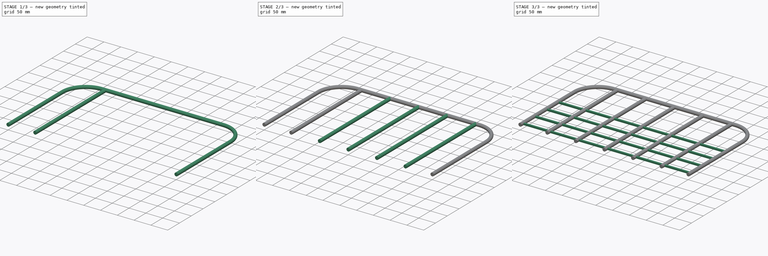
[diagram: build sequence overview — one tinted view per stage of 3, left to right]
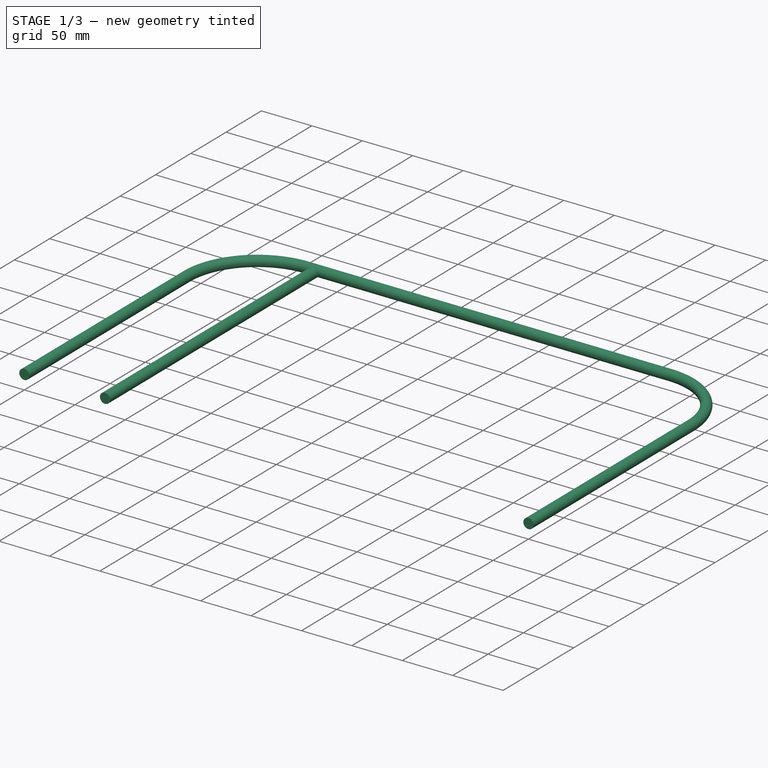
[diagram: stage 1 of 3 — iso view after this stage's code; geometry added in this stage tinted green]
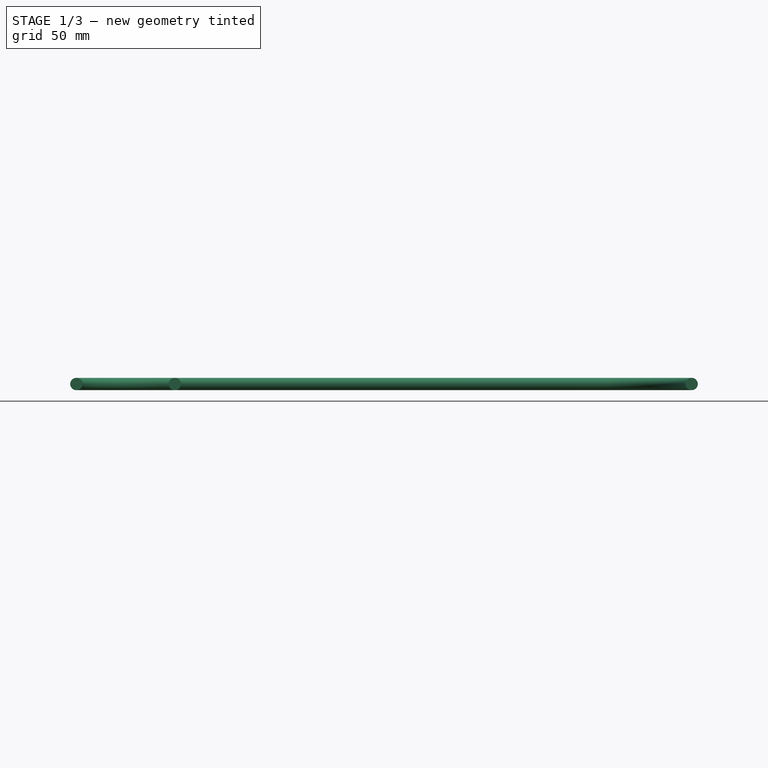
[diagram: stage 1 of 3 — front view after this stage's code; geometry added in this stage tinted green]
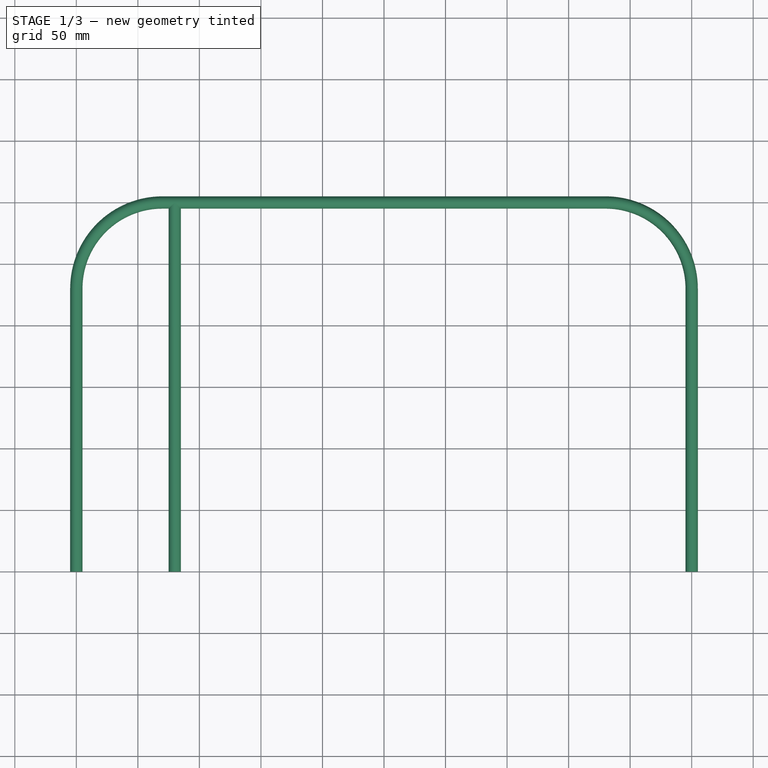
[diagram: stage 1 of 3 — top view after this stage's code; geometry added in this stage tinted green]
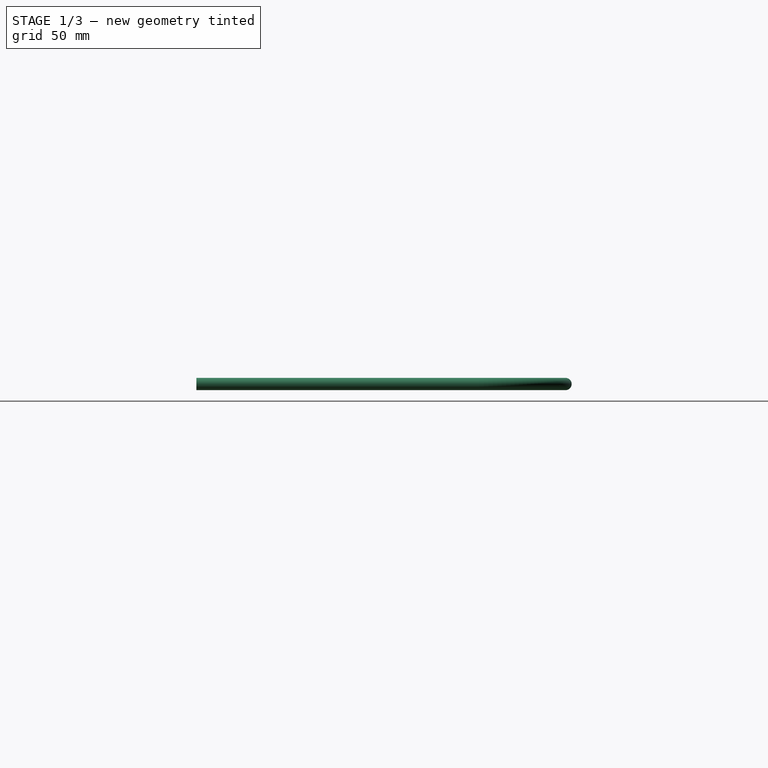
[diagram: stage 1 of 3 — right view after this stage's code; geometry added in this stage tinted green]
FCSTD DOCUMENT  (FreeCAD 0.21RUnknown)
Label: part31
License: All rights reserved
LicenseURL: http://en.wikipedia.org/wiki/All_rights_reserved
objects: Sketcher::SketchObject×5, Part::Part2DObjectPython×3, PartDesign::AdditivePipe×3, PartDesign::LinearPattern×2, Spreadsheet::Sheet×1, App::DocumentObjectGroup×1, PartDesign::Body×1
note: 17 computed .brp shape members not serialized (recipe doc carries the construction recipe); baked Part::Feature solids carry a one-line shape summary decoded from their .brp

FEATURE [Sketcher::SketchObject] Sketch  label="Path"
  FullyConstrained = true
  MapMode = 5
  Support = -> [XY_Plane]
  expr: Constraints[10] = Spreadsheet.SideLength
  expr: Constraints[11] = Spreadsheet.TopRadius
  expr: Constraints[9] = Spreadsheet.TopLength
  sketch-geometry (5):
    g0: LineSegment StartX=-250 StartY=0 StartZ=0 EndX=-250 EndY=230 EndZ=0
    g1: LineSegment StartX=250 StartY=0 StartZ=0 EndX=250 EndY=230 EndZ=0
    g2: LineSegment StartX=-180 StartY=300 StartZ=0 EndX=180 EndY=300 EndZ=0
    g3: ArcOfCircle CenterX=-180 CenterY=230 CenterZ=0 NormalX=0 NormalY=0 NormalZ=1 AngleXU=0 Radius=70 StartAngle=1.5708 EndAngle=3.14159
    g4: ArcOfCircle CenterX=180 CenterY=230 CenterZ=0 NormalX=0 NormalY=0 NormalZ=1 AngleXU=0 Radius=70 StartAngle=0 EndAngle=1.5708
  constraints (12):
    c: PointOnObject(g0,g-1)
    c: Vertical(g0)
    c: Vertical(g1)
    c: Symmetric(g0,g1,g-1)
    c: Symmetric(g2,g2,g-2)
    c: Tangent(g3,g0) = 1.5708
    c: Tangent(g3,g2) = 1.5708
    c: Tangent(g4,g2) = 1.5708
    c: Tangent(g4,g1) = -1.5708
    c: DistanceX(g0,g1) = 500
    c: DistanceY(g0,g2) = 300
    c: Radius(g3) = 70
FEATURE [Spreadsheet::Sheet] Spreadsheet
  cells = A1='TopLength; B1(TopLength)=500; A2='SideLength; B2(SideLength)=300; A3='RopRadius; B3(TopRadius)=70; A4='AddOffset; B4(AddOffset)=10; A5='HCount; B5(HCount)=5; A6='HSpacing; B6(HSpacing)=340; A7='VOffset; B7(VOffset)=10; A8='VCount; B8(VCount)=4; A9='VSpacing; B9(VSpacing)=150
FEATURE [Sketcher::SketchObject] Sketch001  label="Profile1"
  FullyConstrained = true
  sketch-geometry (1):
    g0: Circle CenterX=0 CenterY=0 CenterZ=0 NormalX=0 NormalY=0 NormalZ=1 AngleXU=0 Radius=5
  constraints (2):
    c: Coincident(g0,g-1)
    c: Radius(g0) = 5
FEATURE [Part::Part2DObjectPython] Clone2D  label="Profile1 (2D)"  # Draft 2D object (typed FeaturePython)
  Fuse = false
  MapMode = 7
  Objects = -> [Sketch001]
  Placement = pos=(-250,0,0) rot=(1,0,0;1.5708rad)
  Scale = (1,1,1)
  Support = -> [Sketch]
FEATURE [PartDesign::AdditivePipe] AdditivePipe
  AuxilleryCurvelinear = true
  AuxillerySpineTangent = false
  Binormal = (0,0,0)
  Mode = 0
  Profile = -> Clone2D
  Spine = -> Sketch
  SpineTangent = false
  Transformation = 0
  Transition = 0
FEATURE [Sketcher::SketchObject] Sketch002  label="VStrutPath"
  AttachmentOffset = pos=(-170,0,0) rot=(0,0,1;0rad)
  FullyConstrained = true
  MapMode = 5
  Placement = pos=(-170,0,0) rot=(0,0,1;0rad)
  Support = -> [XY_Plane]
  expr: .AttachmentOffset.Base.x = -Spreadsheet.TopLength / 2 + Spreadsheet.TopRadius + Spreadsheet.AddOffset
  expr: Constraints[2] = Spreadsheet.SideLength
  sketch-geometry (1):
    g0: LineSegment StartX=0 StartY=0 StartZ=0 EndX=0 EndY=300 EndZ=0
  constraints (3):
    c: Coincident(g0,g-1)
    c: PointOnObject(g0,g-2)
    c: DistanceY(g0,g0) = 300
FEATURE [Part::Part2DObjectPython] Clone2D001  label="Profile1 (2D)001"  # Draft 2D object (typed FeaturePython)
  Fuse = false
  MapMode = 7
  Objects = -> [Sketch001]
  Placement = pos=(-170,0,0) rot=(1,0,0;1.5708rad)
  Scale = (1,1,1)
  Support = -> [Sketch002]
FEATURE [PartDesign::AdditivePipe] AdditivePipe001
  AuxilleryCurvelinear = true
  AuxillerySpineTangent = false
  BaseFeature = -> AdditivePipe
  Binormal = (0,0,0)
  Mode = 0
  Profile = -> Clone2D001
  Spine = -> Sketch002
  SpineTangent = false
  Transformation = 0
  Transition = 0
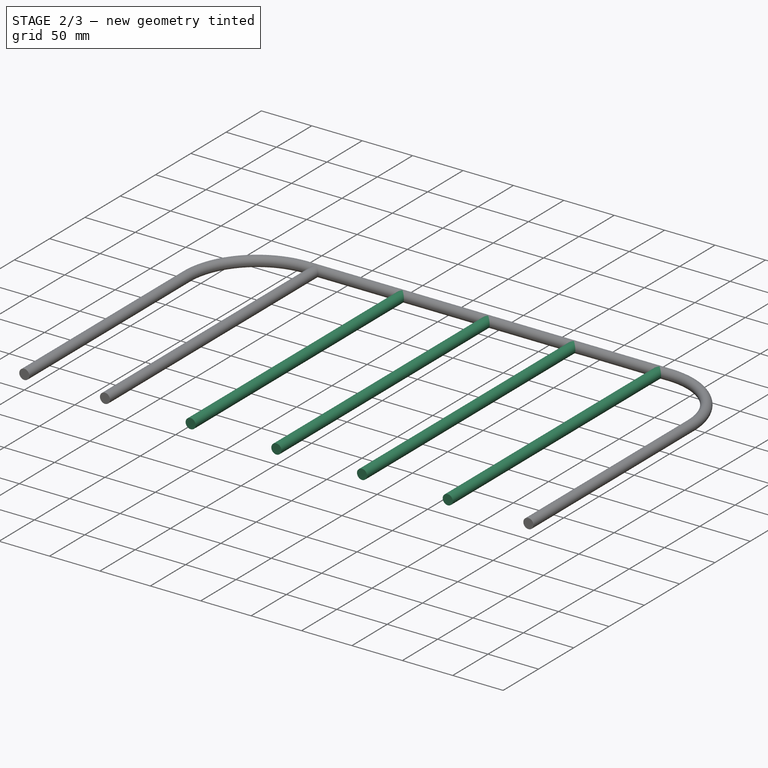
[diagram: stage 2 of 3 — iso view after this stage's code; geometry added in this stage tinted green]
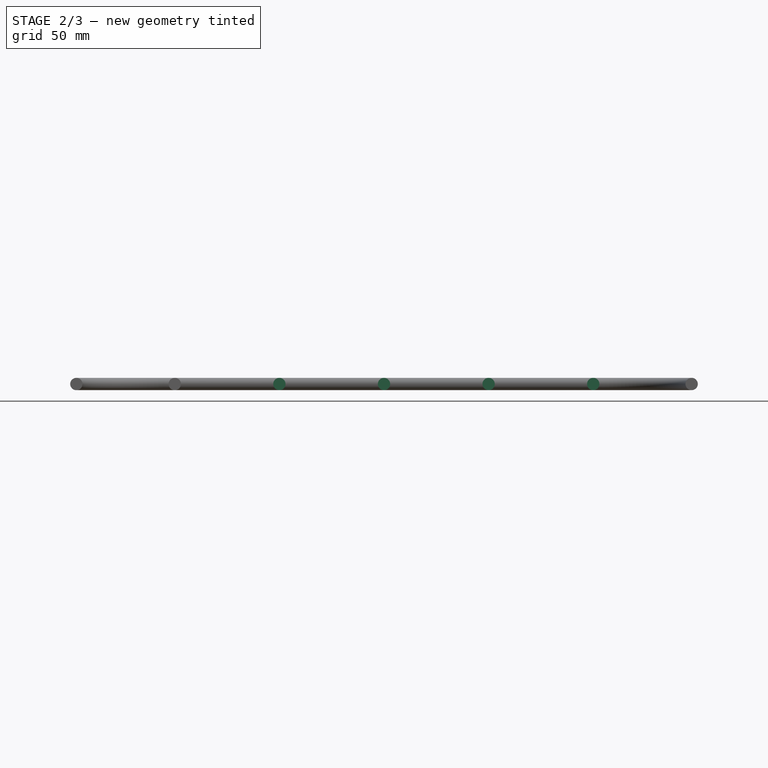
[diagram: stage 2 of 3 — front view after this stage's code; geometry added in this stage tinted green]
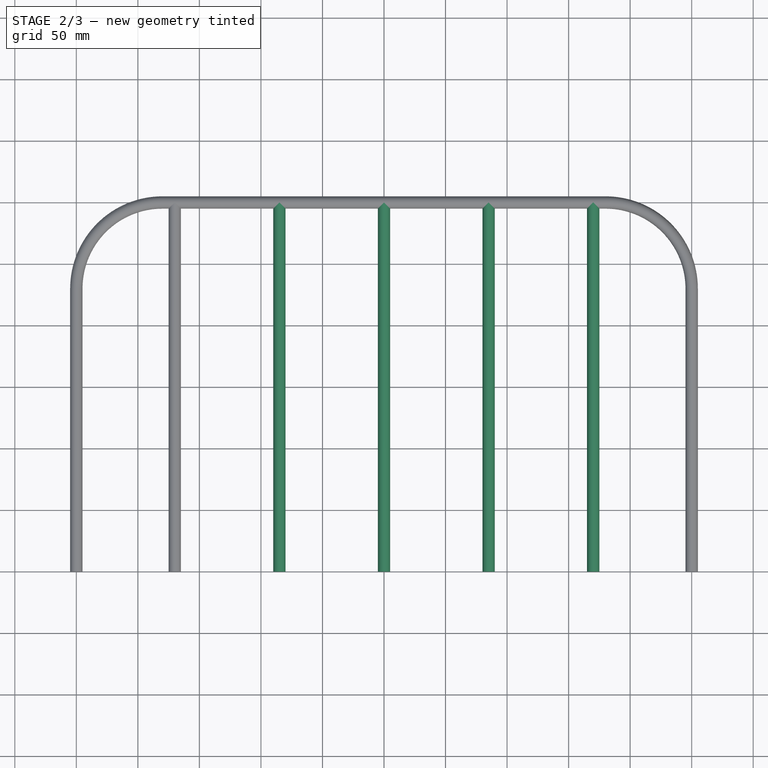
[diagram: stage 2 of 3 — top view after this stage's code; geometry added in this stage tinted green]
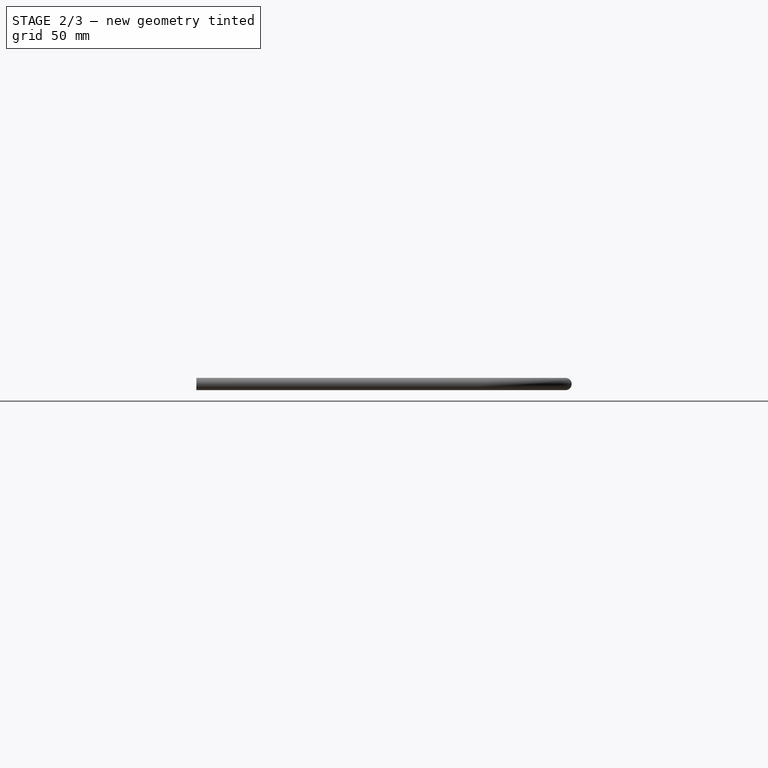
[diagram: stage 2 of 3 — right view after this stage's code; geometry added in this stage tinted green]
FEATURE [PartDesign::LinearPattern] LinearPattern
  BaseFeature = -> AdditivePipe001
  Direction = -> Clone2D001 [H_Axis]
  Length = 340
  Occurrences = 5
  Originals = -> [AdditivePipe001]
  expr: Length = Spreadsheet.HSpacing
  expr: Occurrences = Spreadsheet.HCount
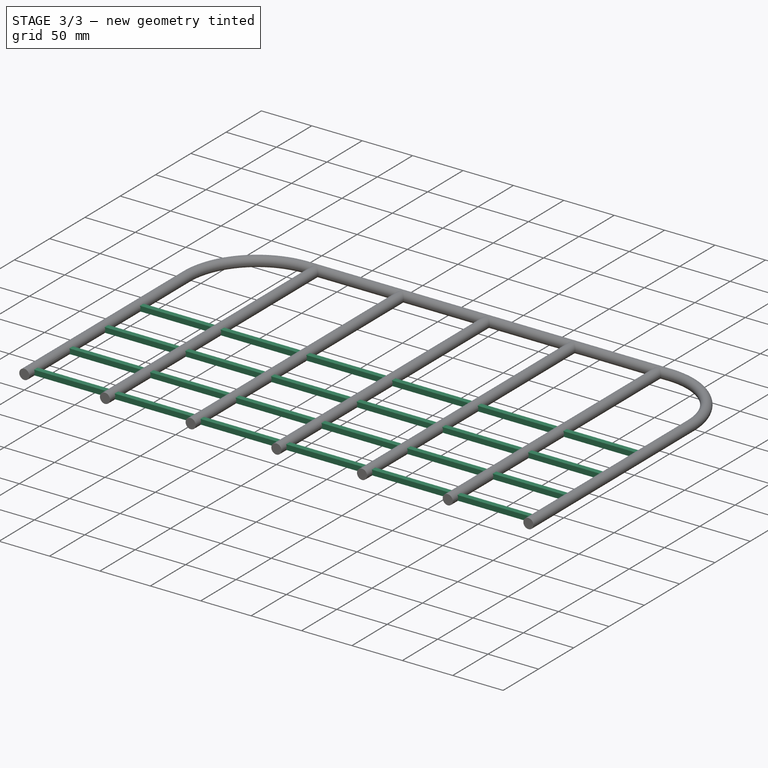
[diagram: stage 3 of 3 — iso view after this stage's code; geometry added in this stage tinted green]
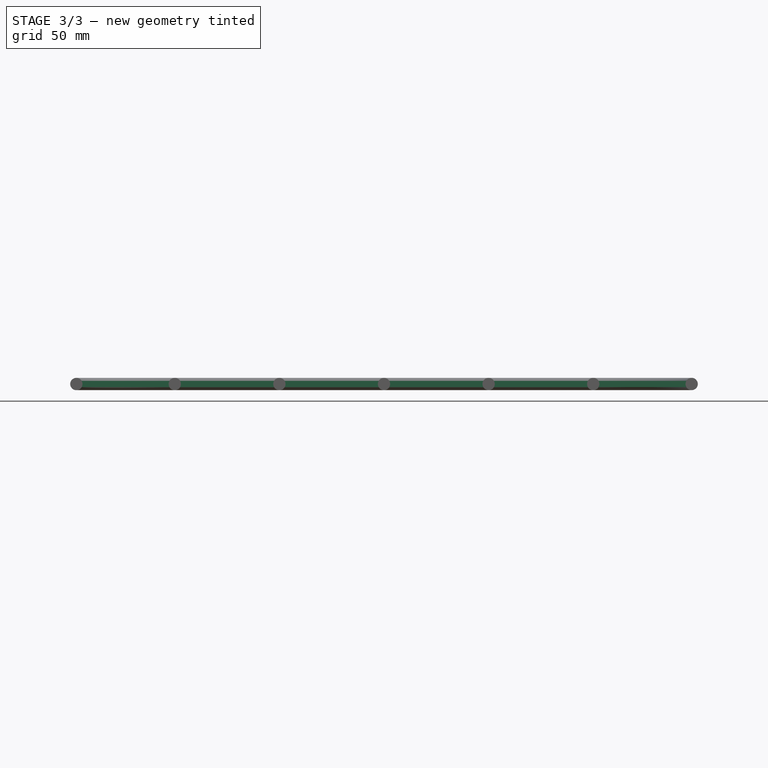
[diagram: stage 3 of 3 — front view after this stage's code; geometry added in this stage tinted green]
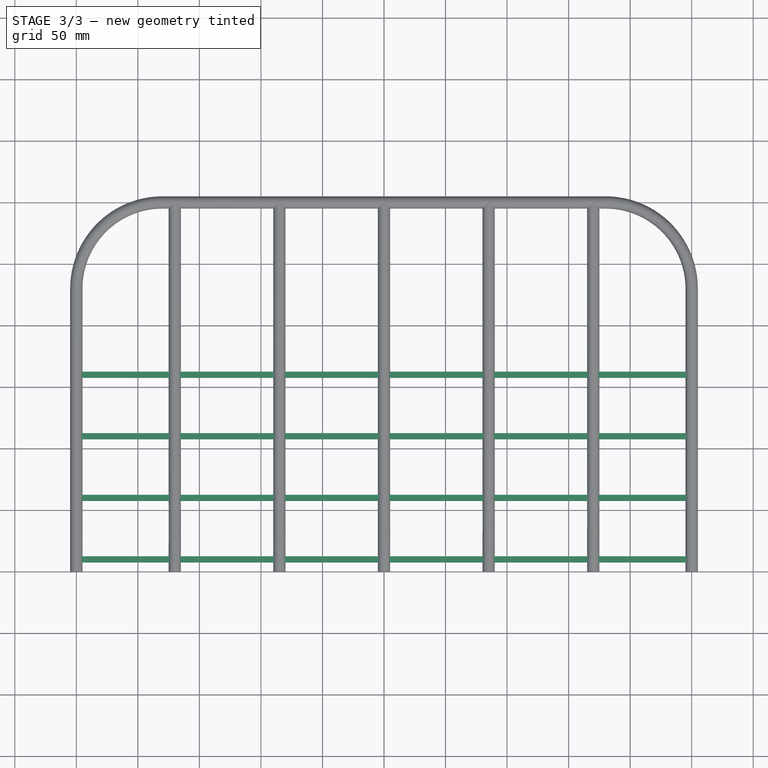
[diagram: stage 3 of 3 — top view after this stage's code; geometry added in this stage tinted green]
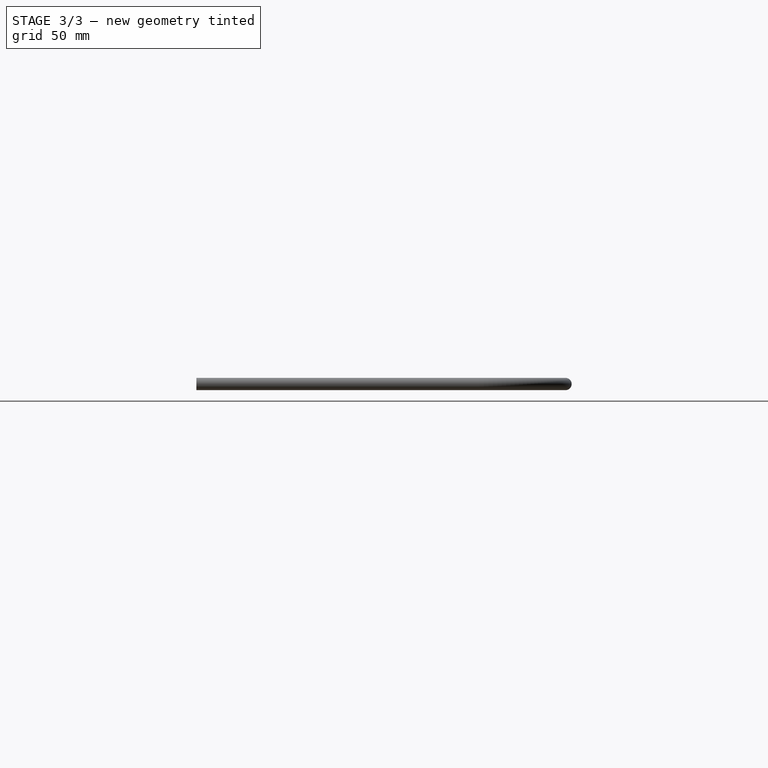
[diagram: stage 3 of 3 — right view after this stage's code; geometry added in this stage tinted green]
FEATURE [Sketcher::SketchObject] Sketch003  label="HStrutPath"
  AttachmentOffset = pos=(-250,10,0) rot=(0,0,1;0rad)
  FullyConstrained = true
  MapMode = 5
  Placement = pos=(-250,10,0) rot=(0,0,1;0rad)
  Support = -> [XY_Plane]
  expr: .AttachmentOffset.Base.x = -Spreadsheet.TopLength / 2
  expr: .AttachmentOffset.Base.y = Spreadsheet.VOffset
  expr: Constraints[2] = Spreadsheet.TopLength
  sketch-geometry (1):
    g0: LineSegment StartX=0 StartY=0 StartZ=0 EndX=500 EndY=0 EndZ=0
  constraints (3):
    c: Coincident(g0,g-1)
    c: PointOnObject(g0,g-1)
    c: DistanceX(g0,g0) = 500
FEATURE [Sketcher::SketchObject] Sketch004  label="Profile2"
  FullyConstrained = true
  MapMode = 5
  Support = -> [XY_Plane]
  sketch-geometry (4):
    g0: LineSegment StartX=-2.5 StartY=2.5 StartZ=0 EndX=2.5 EndY=2.5 EndZ=0
    g1: LineSegment StartX=2.5 StartY=2.5 StartZ=0 EndX=2.5 EndY=-2.5 EndZ=0
    g2: LineSegment StartX=2.5 StartY=-2.5 StartZ=0 EndX=-2.5 EndY=-2.5 EndZ=0
    g3: LineSegment StartX=-2.5 StartY=-2.5 StartZ=0 EndX=-2.5 EndY=2.5 EndZ=0
  constraints (11):
    c: Coincident(g0,g1)
    c: Coincident(g1,g2)
    c: Coincident(g2,g3)
    c: Coincident(g3,g0)
    c: Horizontal(g0)
    c: Horizontal(g2)
    c: Vertical(g1)
    c: Vertical(g3)
    c: Symmetric(g0,g1,g-1)
    c: Equal(g0,g1)
    c: DistanceX(g0,g0) = 5
FEATURE [App::DocumentObjectGroup] Group  label="ProfileTemplates"
  Group = -> [Sketch001,Sketch004]
FEATURE [Part::Part2DObjectPython] Clone2D002  label="Profile1 (2D)002"  # Draft 2D object (typed FeaturePython)
  Fuse = false
  MapMode = 7
  Objects = -> [Sketch004]
  Placement = pos=(-250,10,0) rot=(0.57735,-0.57735,-0.57735;2.0944rad)
  Scale = (1,1,1)
  Support = -> [Sketch003]
FEATURE [PartDesign::AdditivePipe] AdditivePipe002
  AuxilleryCurvelinear = true
  AuxillerySpineTangent = false
  BaseFeature = -> LinearPattern
  Binormal = (0,0,0)
  Mode = 0
  Profile = -> Clone2D002
  Spine = -> Sketch003
  SpineTangent = false
  Transformation = 0
  Transition = 0
FEATURE [PartDesign::LinearPattern] LinearPattern001
  BaseFeature = -> AdditivePipe002
  Direction = -> Clone2D002 [H_Axis]
  Length = 150
  Occurrences = 4
  Originals = -> [AdditivePipe002]
  Reversed = true
  expr: Length = Spreadsheet.VSpacing
  expr: Occurrences = Spreadsheet.VCount
FEATURE [PartDesign::Body] Body
  Group = -> [Sketch,Clone2D,AdditivePipe,Sketch002,Clone2D001,AdditivePipe001,LinearPattern,Sketch003,Clone2D002,AdditivePipe002,LinearPattern001]
  Origin = -> Origin
  Tip = -> LinearPattern001
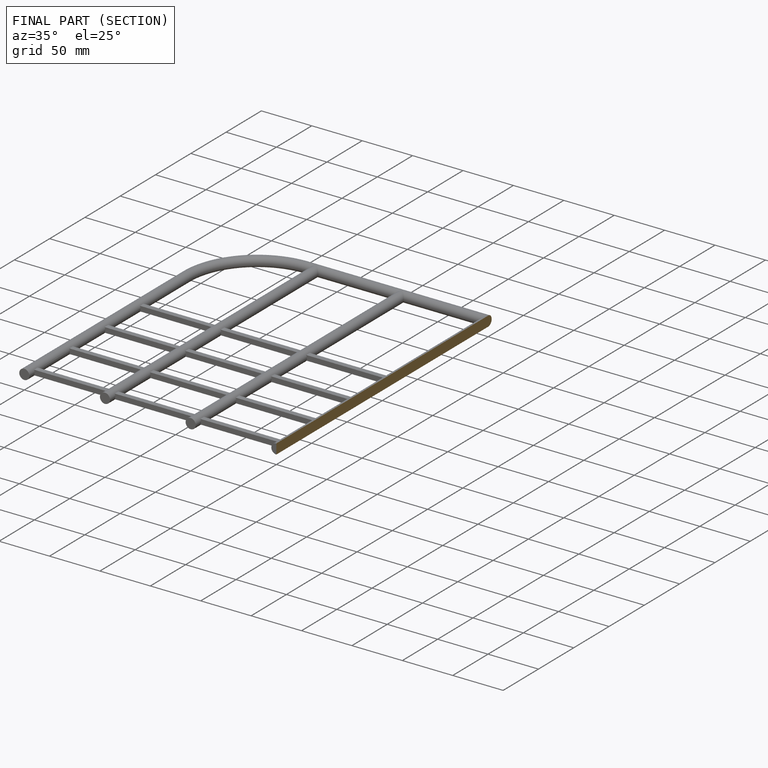
[diagram: finished part — half-section view (interior)]
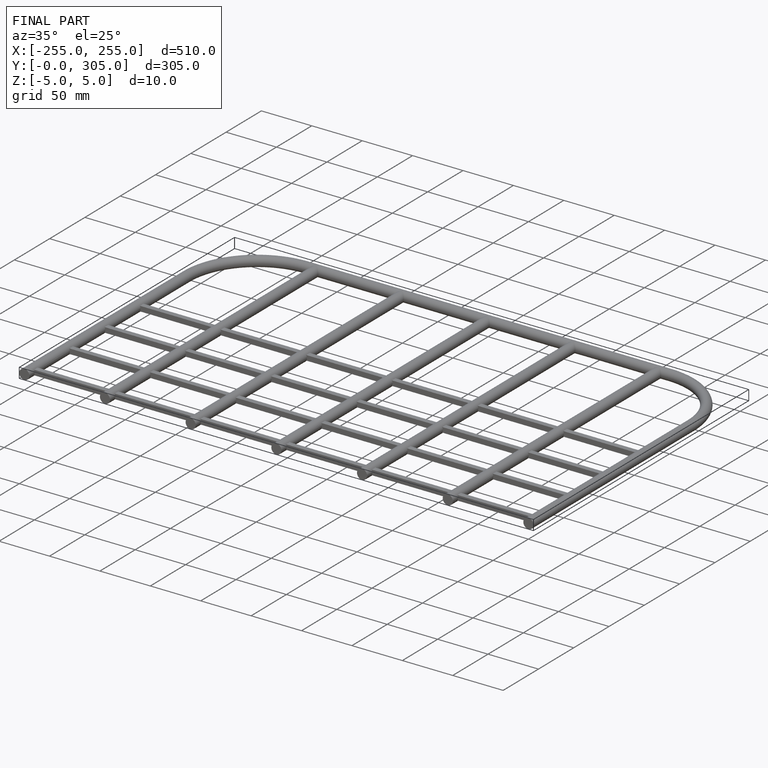
[diagram: finished part — iso view with bounding-box wireframe]
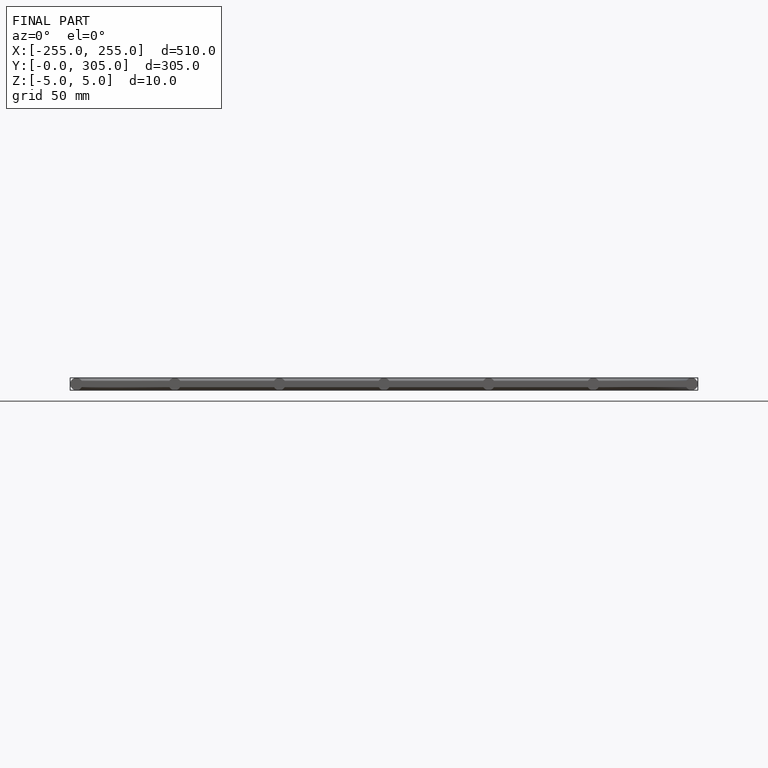
[diagram: finished part — front view with bounding-box wireframe]
